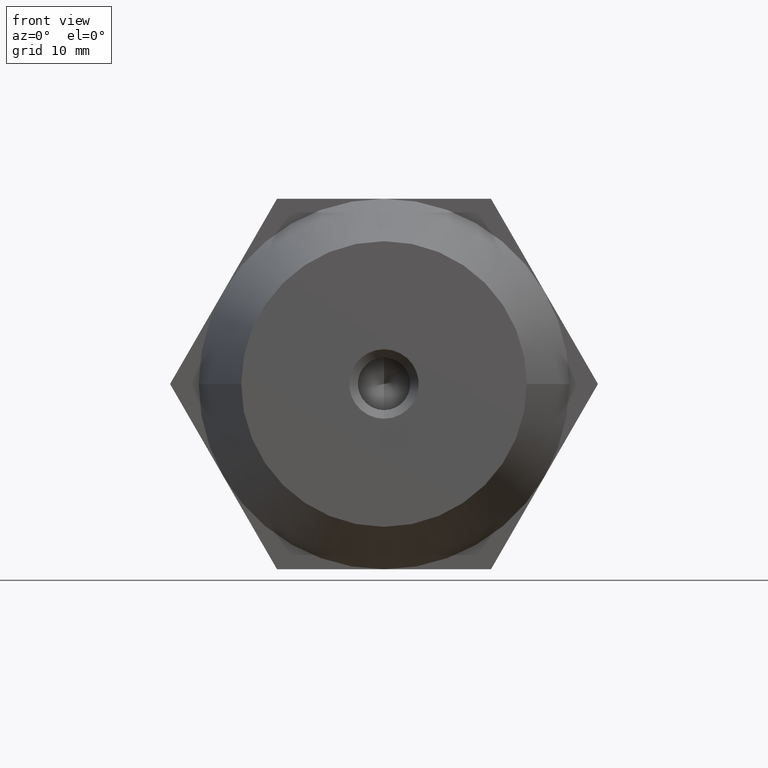
[diagram: clean part render]
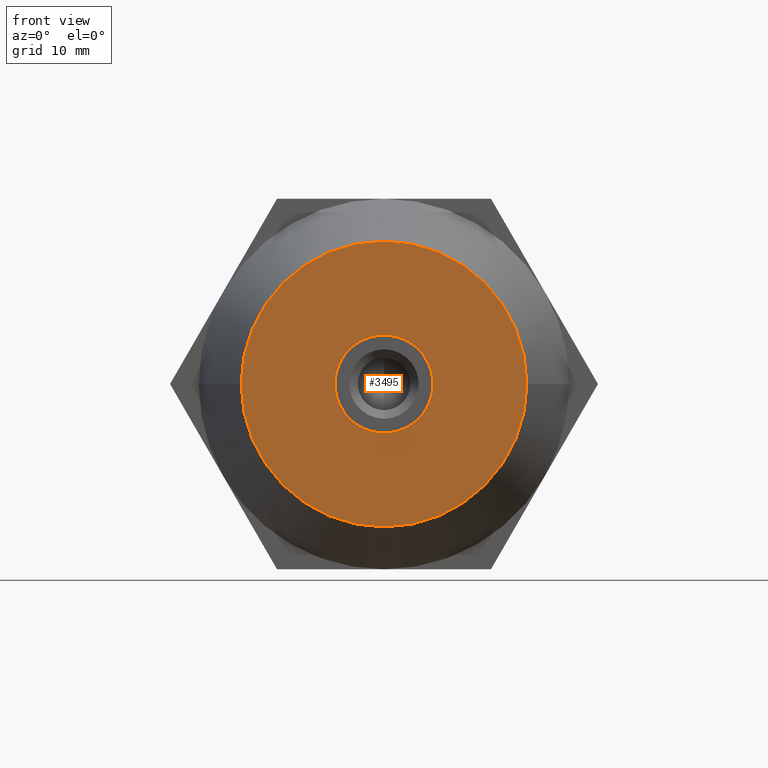
[diagram: same view with one face highlighted and labeled with its STEP entity id]
A machine part, front view. The second image highlights one B-rep face of the part: STEP entity #3495.
In plain terms, the highlighted planar face has unit normal (0, -1, 0).
Its self-contained STEP definition (entity closure, byte-faithful):
#32 = CARTESIAN_POINT ( 'NONE',  ( 18.50000000000000700, -29.99999999999999600, 2.602374448188125800E-015 ) ) ;
#70 = CARTESIAN_POINT ( 'NONE',  ( -3.174999999999999800, -30.00000000000000000, -5.499261314031190100 ) ) ;
#132 = VERTEX_POINT ( 'NONE', #1342 ) ;
#228 = DIRECTION ( 'NONE',  ( 1.224646799147352000E-016, -1.000000000000000000, 0.0000000000000000000 ) ) ;
#420 = CARTESIAN_POINT ( 'NONE',  ( -3.174999999999999800, -30.00000000000000000, 5.499261314031179500 ) ) ;
#428 = ORIENTED_EDGE ( 'NONE', *, *, #2230, .T. ) ;
#437 = CARTESIAN_POINT ( 'NONE',  ( 3.174999999999999800, -30.00000000000000000, -5.499261314031190100 ) ) ;
#444 = DIRECTION ( 'NONE',  ( 0.0000000000000000000, 0.0000000000000000000, 1.000000000000000000 ) ) ;
#446 = AXIS2_PLACEMENT_3D ( 'NONE', #489, #3306, #1335 ) ;
#468 = VERTEX_POINT ( 'NONE', #70 ) ;
#470 = DIRECTION ( 'NONE',  ( -0.0000000000000000000, 1.000000000000000000, -2.220446049250315100E-016 ) ) ;
#489 = CARTESIAN_POINT ( 'NONE',  ( -3.469446951953615000E-015, -30.00000000000000000, 0.0000000000000000000 ) ) ;
#540 = CIRCLE ( 'NONE', #1173, 6.349999999999999600 ) ;
#548 = CIRCLE ( 'NONE', #446, 6.349999999999999600 ) ;
#677 = AXIS2_PLACEMENT_3D ( 'NONE', #3005, #1598, #444 ) ;
#843 = AXIS2_PLACEMENT_3D ( 'NONE', #3284, #1571, #3562 ) ;
#849 = EDGE_CURVE ( 'NONE', #2789, #2777, #1093, .T. ) ;
#893 = CARTESIAN_POINT ( 'NONE',  ( -3.469446951953615000E-015, -30.00000000000000000, 0.0000000000000000000 ) ) ;
#995 = AXIS2_PLACEMENT_3D ( 'NONE', #2882, #2858, #2000 ) ;
#1055 = EDGE_CURVE ( 'NONE', #3385, #468, #2565, .T. ) ;
#1072 = VERTEX_POINT ( 'NONE', #1639 ) ;
#1083 = CIRCLE ( 'NONE', #677, 6.349999999999999600 ) ;
#1093 = CIRCLE ( 'NONE', #995, 18.50000000000000000 ) ;
#1124 = AXIS2_PLACEMENT_3D ( 'NONE', #2124, #2714, #3587 ) ;
#1173 = AXIS2_PLACEMENT_3D ( 'NONE', #1726, #470, #3070 ) ;
#1275 = CIRCLE ( 'NONE', #2892, 18.50000000000000000 ) ;
#1289 = DIRECTION ( 'NONE',  ( -1.224646799147352000E-016, 1.000000000000000000, 0.0000000000000000000 ) ) ;
#1330 = AXIS2_PLACEMENT_3D ( 'NONE', #893, #3141, #3160 ) ;
#1335 = DIRECTION ( 'NONE',  ( 0.0000000000000000000, 0.0000000000000000000, 1.000000000000000000 ) ) ;
#1342 = CARTESIAN_POINT ( 'NONE',  ( 3.174999999999999800, -30.00000000000000000, 5.499261314031179500 ) ) ;
#1467 = ORIENTED_EDGE ( 'NONE', *, *, #849, .F. ) ;
#1571 = DIRECTION ( 'NONE',  ( -0.0000000000000000000, 1.000000000000000000, -2.220446049250315100E-016 ) ) ;
#1598 = DIRECTION ( 'NONE',  ( -0.0000000000000000000, 1.000000000000000000, -2.220446049250315100E-016 ) ) ;
#1628 = DIRECTION ( 'NONE',  ( 1.000000000000000000, 1.224646799147352000E-016, 0.0000000000000000000 ) ) ;
#1639 = CARTESIAN_POINT ( 'NONE',  ( -6.349999999999999600, -30.00000000000000000, 0.0000000000000000000 ) ) ;
#1664 = PLANE ( 'NONE',  #2201 ) ;
#1726 = CARTESIAN_POINT ( 'NONE',  ( -3.469446951953615000E-015, -30.00000000000000000, 0.0000000000000000000 ) ) ;
#1907 = CARTESIAN_POINT ( 'NONE',  ( -18.50000000000000000, -30.00000000000000000, 0.0000000000000000000 ) ) ;
#1956 = EDGE_CURVE ( 'NONE', #2777, #2789, #1275, .T. ) ;
#1984 = EDGE_LOOP ( 'NONE', ( #1467, #2528 ) ) ;
#2000 = DIRECTION ( 'NONE',  ( -1.000000000000000000, -1.875376730785737500E-016, 0.0000000000000000000 ) ) ;
#2040 = FACE_BOUND ( 'NONE', #3506, .T. ) ;
#2043 = EDGE_CURVE ( 'NONE', #2545, #132, #548, .T. ) ;
#2124 = CARTESIAN_POINT ( 'NONE',  ( -3.469446951953615000E-015, -30.00000000000000000, 0.0000000000000000000 ) ) ;
#2180 = ORIENTED_EDGE ( 'NONE', *, *, #2522, .T. ) ;
#2201 = AXIS2_PLACEMENT_3D ( 'NONE', #1907, #228, #1628 ) ;
#2215 = ORIENTED_EDGE ( 'NONE', *, *, #2043, .T. ) ;
#2230 = EDGE_CURVE ( 'NONE', #1072, #2545, #3229, .T. ) ;
#2318 = FACE_OUTER_BOUND ( 'NONE', #1984, .T. ) ;
#2474 = EDGE_CURVE ( 'NONE', #132, #3407, #1083, .T. ) ;
#2478 = CIRCLE ( 'NONE', #1124, 6.349999999999999600 ) ;
#2522 = EDGE_CURVE ( 'NONE', #3407, #3385, #2478, .T. ) ;
#2528 = ORIENTED_EDGE ( 'NONE', *, *, #1956, .F. ) ;
#2545 = VERTEX_POINT ( 'NONE', #420 ) ;
#2565 = CIRCLE ( 'NONE', #843, 6.349999999999999600 ) ;
#2679 = CARTESIAN_POINT ( 'NONE',  ( 7.347880794884119900E-015, -30.00000000000000000, 0.0000000000000000000 ) ) ;
#2714 = DIRECTION ( 'NONE',  ( -0.0000000000000000000, 1.000000000000000000, -2.220446049250315100E-016 ) ) ;
#2777 = VERTEX_POINT ( 'NONE', #32 ) ;
#2789 = VERTEX_POINT ( 'NONE', #2982 ) ;
#2858 = DIRECTION ( 'NONE',  ( -1.224646799147352000E-016, 1.000000000000000000, 0.0000000000000000000 ) ) ;
#2881 = ORIENTED_EDGE ( 'NONE', *, *, #2474, .T. ) ;
#2882 = CARTESIAN_POINT ( 'NONE',  ( 7.347880794884119900E-015, -30.00000000000000000, 0.0000000000000000000 ) ) ;
#2892 = AXIS2_PLACEMENT_3D ( 'NONE', #2679, #1289, #3256 ) ;
#2894 = ORIENTED_EDGE ( 'NONE', *, *, #1055, .T. ) ;
#2982 = CARTESIAN_POINT ( 'NONE',  ( -18.49999999999999300, -30.00000000000000400, 0.0000000000000000000 ) ) ;
#3005 = CARTESIAN_POINT ( 'NONE',  ( -3.469446951953615000E-015, -30.00000000000000000, 0.0000000000000000000 ) ) ;
#3070 = DIRECTION ( 'NONE',  ( 0.0000000000000000000, 0.0000000000000000000, 1.000000000000000000 ) ) ;
#3108 = ORIENTED_EDGE ( 'NONE', *, *, #3121, .T. ) ;
#3121 = EDGE_CURVE ( 'NONE', #468, #1072, #540, .T. ) ;
#3141 = DIRECTION ( 'NONE',  ( -0.0000000000000000000, 1.000000000000000000, -2.220446049250315100E-016 ) ) ;
#3160 = DIRECTION ( 'NONE',  ( -1.776356839400250500E-015, 0.0000000000000000000, 1.000000000000000000 ) ) ;
#3229 = CIRCLE ( 'NONE', #1330, 6.349999999999999600 ) ;
#3256 = DIRECTION ( 'NONE',  ( -1.000000000000000000, -1.875376730785737500E-016, 0.0000000000000000000 ) ) ;
#3284 = CARTESIAN_POINT ( 'NONE',  ( -3.469446951953615000E-015, -30.00000000000000000, 0.0000000000000000000 ) ) ;
#3306 = DIRECTION ( 'NONE',  ( -0.0000000000000000000, 1.000000000000000000, -2.220446049250315100E-016 ) ) ;
#3385 = VERTEX_POINT ( 'NONE', #437 ) ;
#3407 = VERTEX_POINT ( 'NONE', #3579 ) ;
#3495 = ADVANCED_FACE ( 'NONE', ( #2318, #2040 ), #1664, .T. ) ;
#3506 = EDGE_LOOP ( 'NONE', ( #428, #2215, #2881, #2180, #2894, #3108 ) ) ;
#3562 = DIRECTION ( 'NONE',  ( -1.776356839400250500E-015, 0.0000000000000000000, 1.000000000000000000 ) ) ;
#3579 = CARTESIAN_POINT ( 'NONE',  ( 6.349999999999999600, -30.00000000000000000, 0.0000000000000000000 ) ) ;
#3587 = DIRECTION ( 'NONE',  ( 0.0000000000000000000, 0.0000000000000000000, 1.000000000000000000 ) ) ;